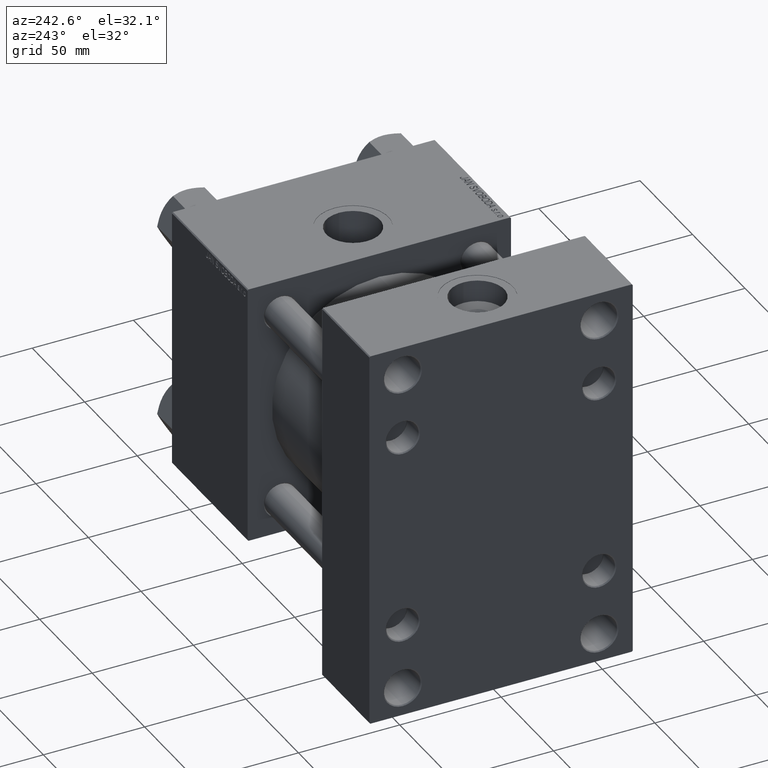
[diagram: clean part render]
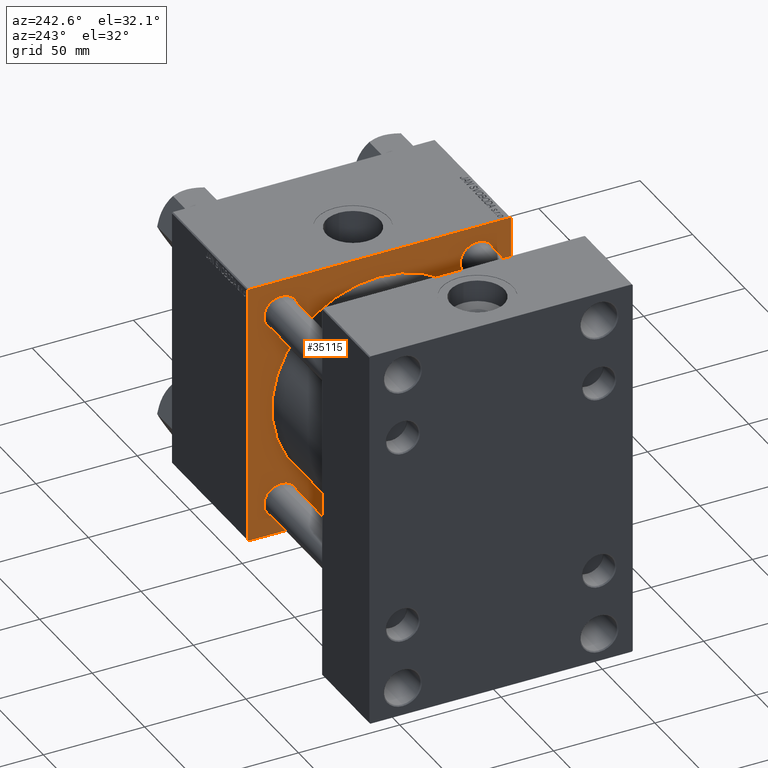
[diagram: same view with one face highlighted and labeled with its STEP entity id]
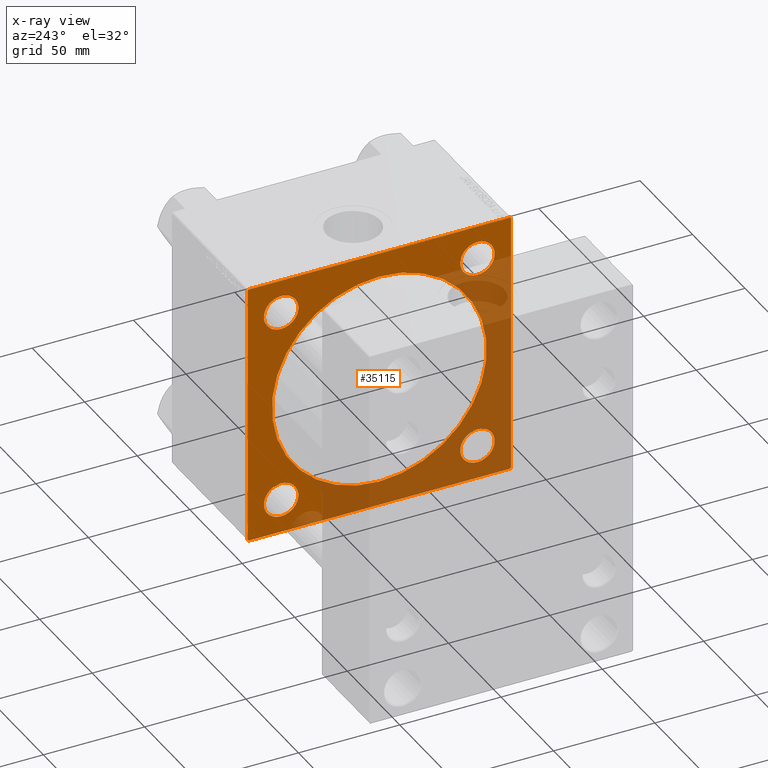
[diagram: x-ray of the same camera — body ghosted, the highlighted face saturated]
A machine part, auxiliary view. The second image highlights one B-rep face of the part: STEP entity #35115.
The next image is the same camera in x-ray: the body ghosted, the highlighted face saturated — about 43% of this face is hidden behind the body in this view.
In plain terms, the highlighted planar face has unit normal (-1, 0, 0).
Its self-contained STEP definition (entity closure, byte-faithful):
#81 = VERTEX_POINT ( 'NONE', #27203 ) ;
#229 = CARTESIAN_POINT ( 'NONE',  ( 115.9999999999999858, -64.99999999999998579, -64.49999999999997158 ) ) ;
#721 = DIRECTION ( 'NONE',  ( 0.000000000000000000, 0.000000000000000000, 1.000000000000000000 ) ) ;
#1762 = VECTOR ( 'NONE', #23969, 1000.000000000000000 ) ;
#1875 = FACE_BOUND ( 'NONE', #38560, .T. ) ;
#1954 = AXIS2_PLACEMENT_3D ( 'NONE', #36151, #47640, #43314 ) ;
#2648 = EDGE_CURVE ( 'NONE', #25100, #5800, #24473, .T. ) ;
#2710 = CARTESIAN_POINT ( 'NONE',  ( 115.9999999999999858, 65.00000000000002842, 64.50000000000004263 ) ) ;
#2801 = VERTEX_POINT ( 'NONE', #15984 ) ;
#3067 = LINE ( 'NONE', #41595, #46905 ) ;
#3414 = ORIENTED_EDGE ( 'NONE', *, *, #33796, .T. ) ;
#3471 = VERTEX_POINT ( 'NONE', #11128 ) ;
#4041 = EDGE_LOOP ( 'NONE', ( #50212, #26798 ) ) ;
#4786 = CARTESIAN_POINT ( 'NONE',  ( 115.9999999999999858, 48.45000000000000995, -56.95000000000007390 ) ) ;
#4822 = ORIENTED_EDGE ( 'NONE', *, *, #39467, .T. ) ;
#5620 = ORIENTED_EDGE ( 'NONE', *, *, #25835, .T. ) ;
#5629 = EDGE_LOOP ( 'NONE', ( #4822, #21544 ) ) ;
#5800 = VERTEX_POINT ( 'NONE', #229 ) ;
#7170 = ORIENTED_EDGE ( 'NONE', *, *, #40375, .T. ) ;
#7910 = AXIS2_PLACEMENT_3D ( 'NONE', #22193, #37774, #30105 ) ;
#7950 = DIRECTION ( 'NONE',  ( 1.000000000000000000, -0.000000000000000000, 0.000000000000000000 ) ) ;
#8104 = ORIENTED_EDGE ( 'NONE', *, *, #30467, .T. ) ;
#8114 = CARTESIAN_POINT ( 'NONE',  ( 115.9999999999999858, 64.49999999999997158, -64.99999999999998579 ) ) ;
#8438 = CARTESIAN_POINT ( 'NONE',  ( 115.9999999999999858, -48.44999999999999574, -56.95000000000008811 ) ) ;
#8525 = EDGE_LOOP ( 'NONE', ( #42593, #8104 ) ) ;
#8569 = AXIS2_PLACEMENT_3D ( 'NONE', #23482, #7950, #31144 ) ;
#9834 = CARTESIAN_POINT ( 'NONE',  ( 115.9999999999999858, 65.00000000000002842, -64.99999999999998579 ) ) ;
#10544 = CIRCLE ( 'NONE', #30921, 53.00000000000000711 ) ;
#10950 = LINE ( 'NONE', #29817, #41715 ) ;
#11128 = CARTESIAN_POINT ( 'NONE',  ( 115.9999999999999858, 48.45000000000000995, 39.94999999999995310 ) ) ;
#11851 = CARTESIAN_POINT ( 'NONE',  ( 115.9999999999999858, -48.44999999999999574, -39.94999999999996732 ) ) ;
#12093 = CARTESIAN_POINT ( 'NONE',  ( 115.9999999999999858, 48.45000000000000995, 48.45000000000001705 ) ) ;
#12511 = CARTESIAN_POINT ( 'NONE',  ( 115.9999999999999858, -64.99999999999998579, 65.00000000000000000 ) ) ;
#13302 = CARTESIAN_POINT ( 'NONE',  ( 115.9999999999999858, -64.74999999999816680, -64.75000000000176215 ) ) ;
#13410 = DIRECTION ( 'NONE',  ( 0.000000000000000000, 0.000000000000000000, -1.000000000000000000 ) ) ;
#13556 = LINE ( 'NONE', #13302, #49127 ) ;
#14025 = CARTESIAN_POINT ( 'NONE',  ( 115.9999999999999858, 65.00000000000002842, 65.00000000000001421 ) ) ;
#15187 = CARTESIAN_POINT ( 'NONE',  ( 115.9999999999999858, 3.888542821515762466E-15, -53.00000000000000711 ) ) ;
#15674 = DIRECTION ( 'NONE',  ( 0.000000000000000000, 0.000000000000000000, 1.000000000000000000 ) ) ;
#15726 = ORIENTED_EDGE ( 'NONE', *, *, #32432, .T. ) ;
#15877 = VECTOR ( 'NONE', #25383, 1000.000000000000000 ) ;
#15984 = CARTESIAN_POINT ( 'NONE',  ( 115.9999999999999858, 64.50000000000005684, 65.00000000000001421 ) ) ;
#16338 = ORIENTED_EDGE ( 'NONE', *, *, #2648, .F. ) ;
#16937 = FACE_BOUND ( 'NONE', #4041, .T. ) ;
#17009 = EDGE_CURVE ( 'NONE', #40512, #47598, #45324, .T. ) ;
#17092 = AXIS2_PLACEMENT_3D ( 'NONE', #22091, #26177, #33089 ) ;
#17120 = AXIS2_PLACEMENT_3D ( 'NONE', #44088, #19601, #721 ) ;
#17435 = FACE_OUTER_BOUND ( 'NONE', #38097, .T. ) ;
#17573 = DIRECTION ( 'NONE',  ( 1.000000000000000000, 0.000000000000000000, 0.000000000000000000 ) ) ;
#17887 = VERTEX_POINT ( 'NONE', #38648 ) ;
#18404 = EDGE_CURVE ( 'NONE', #2801, #31140, #22448, .T. ) ;
#19601 = DIRECTION ( 'NONE',  ( 1.000000000000000000, -0.000000000000000000, 0.000000000000000000 ) ) ;
#19797 = DIRECTION ( 'NONE',  ( -0.000000000000000000, -0.7071067811865474617, -0.7071067811865474617 ) ) ;
#20663 = VERTEX_POINT ( 'NONE', #8114 ) ;
#20721 = EDGE_CURVE ( 'NONE', #45558, #25261, #22741, .T. ) ;
#20753 = FACE_BOUND ( 'NONE', #45099, .T. ) ;
#20821 = VERTEX_POINT ( 'NONE', #2710 ) ;
#21136 = CARTESIAN_POINT ( 'NONE',  ( 115.9999999999999858, -48.44999999999999574, 39.94999999999996732 ) ) ;
#21242 = FACE_BOUND ( 'NONE', #5629, .T. ) ;
#21429 = DIRECTION ( 'NONE',  ( 0.000000000000000000, -0.7071067811865672237, 0.7071067811865279218 ) ) ;
#21544 = ORIENTED_EDGE ( 'NONE', *, *, #48207, .T. ) ;
#21659 = ORIENTED_EDGE ( 'NONE', *, *, #29829, .T. ) ;
#21708 = EDGE_CURVE ( 'NONE', #47598, #40512, #30953, .T. ) ;
#21881 = CARTESIAN_POINT ( 'NONE',  ( 115.9999999999999858, -64.99999999999998579, 64.49999999999997158 ) ) ;
#22037 = DIRECTION ( 'NONE',  ( 1.000000000000000000, -0.000000000000000000, 0.000000000000000000 ) ) ;
#22091 = CARTESIAN_POINT ( 'NONE',  ( 115.9999999999999858, -48.44999999999999574, -48.45000000000003126 ) ) ;
#22193 = CARTESIAN_POINT ( 'NONE',  ( 115.9999999999999858, -48.44999999999999574, 48.45000000000003126 ) ) ;
#22448 = LINE ( 'NONE', #30866, #42088 ) ;
#22741 = CIRCLE ( 'NONE', #1954, 8.500000000000063949 ) ;
#23124 = LINE ( 'NONE', #23373, #46731 ) ;
#23373 = CARTESIAN_POINT ( 'NONE',  ( 115.9999999999999858, 64.74999999999997158, -64.74999999999997158 ) ) ;
#23482 = CARTESIAN_POINT ( 'NONE',  ( 115.9999999999999858, -48.44999999999999574, 48.45000000000003126 ) ) ;
#23564 = DIRECTION ( 'NONE',  ( 1.000000000000000000, -0.000000000000000000, 0.000000000000000000 ) ) ;
#23909 = AXIS2_PLACEMENT_3D ( 'NONE', #12093, #27378, #46528 ) ;
#23969 = DIRECTION ( 'NONE',  ( 0.000000000000000000, 0.000000000000000000, -1.000000000000000000 ) ) ;
#24473 = LINE ( 'NONE', #12511, #1762 ) ;
#24836 = DIRECTION ( 'NONE',  ( -1.000000000000000000, 0.000000000000000000, -0.000000000000000000 ) ) ;
#25100 = VERTEX_POINT ( 'NONE', #21881 ) ;
#25261 = VERTEX_POINT ( 'NONE', #35607 ) ;
#25383 = DIRECTION ( 'NONE',  ( 0.000000000000000000, -1.000000000000000000, -2.135044278125300850E-16 ) ) ;
#25590 = DIRECTION ( 'NONE',  ( -0.000000000000000000, 0.000000000000000000, 1.000000000000000000 ) ) ;
#25835 = EDGE_CURVE ( 'NONE', #25261, #45558, #28504, .T. ) ;
#26177 = DIRECTION ( 'NONE',  ( 1.000000000000000000, -0.000000000000000000, 0.000000000000000000 ) ) ;
#26489 = DIRECTION ( 'NONE',  ( -0.000000000000000000, 0.7071067811865376918, 0.7071067811865574537 ) ) ;
#26548 = AXIS2_PLACEMENT_3D ( 'NONE', #38137, #23564, #15674 ) ;
#26798 = ORIENTED_EDGE ( 'NONE', *, *, #21708, .T. ) ;
#27203 = CARTESIAN_POINT ( 'NONE',  ( 115.9999999999999858, 65.00000000000002842, -64.49999999999992895 ) ) ;
#27378 = DIRECTION ( 'NONE',  ( 1.000000000000000000, -0.000000000000000000, 0.000000000000000000 ) ) ;
#27635 = VECTOR ( 'NONE', #30310, 1000.000000000000000 ) ;
#28504 = CIRCLE ( 'NONE', #17120, 8.500000000000063949 ) ;
#28628 = ORIENTED_EDGE ( 'NONE', *, *, #48829, .T. ) ;
#28788 = DIRECTION ( 'NONE',  ( 0.000000000000000000, 0.000000000000000000, -1.000000000000000000 ) ) ;
#29166 = CARTESIAN_POINT ( 'NONE',  ( 115.9999999999999858, 0.000000000000000000, 0.000000000000000000 ) ) ;
#29381 = ORIENTED_EDGE ( 'NONE', *, *, #41965, .T. ) ;
#29817 = CARTESIAN_POINT ( 'NONE',  ( 115.9999999999999858, -64.75000000000088107, 64.74999999999907629 ) ) ;
#29829 = EDGE_CURVE ( 'NONE', #25100, #31140, #10950, .T. ) ;
#29832 = ORIENTED_EDGE ( 'NONE', *, *, #38086, .T. ) ;
#30105 = DIRECTION ( 'NONE',  ( 0.000000000000000000, 0.000000000000000000, 1.000000000000000000 ) ) ;
#30195 = CARTESIAN_POINT ( 'NONE',  ( 115.9999999999999858, 48.45000000000000995, 48.45000000000001705 ) ) ;
#30310 = DIRECTION ( 'NONE',  ( 0.000000000000000000, 0.000000000000000000, -1.000000000000000000 ) ) ;
#30467 = EDGE_CURVE ( 'NONE', #3471, #32907, #46660, .T. ) ;
#30511 = AXIS2_PLACEMENT_3D ( 'NONE', #33292, #38060, #13410 ) ;
#30866 = CARTESIAN_POINT ( 'NONE',  ( 115.9999999999999858, 65.00000000000002842, 65.00000000000001421 ) ) ;
#30921 = AXIS2_PLACEMENT_3D ( 'NONE', #40554, #17573, #28788 ) ;
#30953 = CIRCLE ( 'NONE', #17092, 8.500000000000063949 ) ;
#31140 = VERTEX_POINT ( 'NONE', #46537 ) ;
#31144 = DIRECTION ( 'NONE',  ( 0.000000000000000000, 0.000000000000000000, 1.000000000000000000 ) ) ;
#31954 = VERTEX_POINT ( 'NONE', #15187 ) ;
#32432 = EDGE_CURVE ( 'NONE', #47534, #5800, #13556, .T. ) ;
#32495 = PLANE ( 'NONE',  #49230 ) ;
#32500 = CARTESIAN_POINT ( 'NONE',  ( 115.9999999999999858, 48.45000000000000995, 56.95000000000007390 ) ) ;
#32907 = VERTEX_POINT ( 'NONE', #32500 ) ;
#33089 = DIRECTION ( 'NONE',  ( 0.000000000000000000, 0.000000000000000000, 1.000000000000000000 ) ) ;
#33292 = CARTESIAN_POINT ( 'NONE',  ( 115.9999999999999858, -2.602085213965210642E-15, 0.000000000000000000 ) ) ;
#33796 = EDGE_CURVE ( 'NONE', #81, #20663, #23124, .T. ) ;
#35115 = ADVANCED_FACE ( 'NONE', ( #20753, #36331, #1875, #16937, #21242, #17435 ), #32495, .T. ) ;
#35607 = CARTESIAN_POINT ( 'NONE',  ( 115.9999999999999858, 48.45000000000000995, -39.94999999999995310 ) ) ;
#36151 = CARTESIAN_POINT ( 'NONE',  ( 115.9999999999999858, 48.45000000000000995, -48.45000000000001705 ) ) ;
#36331 = FACE_BOUND ( 'NONE', #8525, .T. ) ;
#37455 = ORIENTED_EDGE ( 'NONE', *, *, #20721, .T. ) ;
#37512 = DIRECTION ( 'NONE',  ( 0.000000000000000000, 0.7071067811865474617, -0.7071067811865474617 ) ) ;
#37774 = DIRECTION ( 'NONE',  ( 1.000000000000000000, -0.000000000000000000, 0.000000000000000000 ) ) ;
#37816 = EDGE_CURVE ( 'NONE', #32907, #3471, #45123, .T. ) ;
#38060 = DIRECTION ( 'NONE',  ( 1.000000000000000000, 0.000000000000000000, 0.000000000000000000 ) ) ;
#38086 = EDGE_CURVE ( 'NONE', #46263, #48245, #48471, .T. ) ;
#38097 = EDGE_LOOP ( 'NONE', ( #7170, #15726, #16338, #21659, #43703, #29381, #28628, #3414 ) ) ;
#38137 = CARTESIAN_POINT ( 'NONE',  ( 115.9999999999999858, -48.44999999999999574, -48.45000000000003126 ) ) ;
#38560 = EDGE_LOOP ( 'NONE', ( #5620, #37455 ) ) ;
#38648 = CARTESIAN_POINT ( 'NONE',  ( 115.9999999999999858, -2.602085213965210642E-15, 53.00000000000000711 ) ) ;
#39467 = EDGE_CURVE ( 'NONE', #17887, #31954, #46800, .T. ) ;
#40375 = EDGE_CURVE ( 'NONE', #20663, #47534, #44787, .T. ) ;
#40504 = CIRCLE ( 'NONE', #7910, 8.500000000000063949 ) ;
#40512 = VERTEX_POINT ( 'NONE', #11851 ) ;
#40554 = CARTESIAN_POINT ( 'NONE',  ( 115.9999999999999858, -2.602085213965210642E-15, 0.000000000000000000 ) ) ;
#41595 = CARTESIAN_POINT ( 'NONE',  ( 115.9999999999999858, 64.75000000000004263, 64.75000000000004263 ) ) ;
#41715 = VECTOR ( 'NONE', #26489, 999.9999999999998863 ) ;
#41965 = EDGE_CURVE ( 'NONE', #2801, #20821, #3067, .T. ) ;
#42088 = VECTOR ( 'NONE', #46439, 1000.000000000000000 ) ;
#42593 = ORIENTED_EDGE ( 'NONE', *, *, #37816, .T. ) ;
#43314 = DIRECTION ( 'NONE',  ( 0.000000000000000000, 0.000000000000000000, 1.000000000000000000 ) ) ;
#43391 = AXIS2_PLACEMENT_3D ( 'NONE', #30195, #22037, #46028 ) ;
#43703 = ORIENTED_EDGE ( 'NONE', *, *, #18404, .F. ) ;
#44088 = CARTESIAN_POINT ( 'NONE',  ( 115.9999999999999858, 48.45000000000000995, -48.45000000000001705 ) ) ;
#44787 = LINE ( 'NONE', #9834, #15877 ) ;
#45099 = EDGE_LOOP ( 'NONE', ( #47967, #29832 ) ) ;
#45123 = CIRCLE ( 'NONE', #23909, 8.500000000000063949 ) ;
#45124 = EDGE_CURVE ( 'NONE', #48245, #46263, #40504, .T. ) ;
#45324 = CIRCLE ( 'NONE', #26548, 8.500000000000063949 ) ;
#45558 = VERTEX_POINT ( 'NONE', #4786 ) ;
#46028 = DIRECTION ( 'NONE',  ( 0.000000000000000000, 0.000000000000000000, 1.000000000000000000 ) ) ;
#46263 = VERTEX_POINT ( 'NONE', #21136 ) ;
#46439 = DIRECTION ( 'NONE',  ( 0.000000000000000000, -1.000000000000000000, -1.067522139062650425E-16 ) ) ;
#46528 = DIRECTION ( 'NONE',  ( 0.000000000000000000, 0.000000000000000000, 1.000000000000000000 ) ) ;
#46537 = CARTESIAN_POINT ( 'NONE',  ( 115.9999999999999858, -64.49999999999997158, 65.00000000000000000 ) ) ;
#46660 = CIRCLE ( 'NONE', #43391, 8.500000000000063949 ) ;
#46731 = VECTOR ( 'NONE', #19797, 1000.000000000000114 ) ;
#46800 = CIRCLE ( 'NONE', #30511, 53.00000000000000711 ) ;
#46905 = VECTOR ( 'NONE', #37512, 1000.000000000000114 ) ;
#47534 = VERTEX_POINT ( 'NONE', #50273 ) ;
#47598 = VERTEX_POINT ( 'NONE', #8438 ) ;
#47640 = DIRECTION ( 'NONE',  ( 1.000000000000000000, -0.000000000000000000, 0.000000000000000000 ) ) ;
#47967 = ORIENTED_EDGE ( 'NONE', *, *, #45124, .T. ) ;
#48207 = EDGE_CURVE ( 'NONE', #31954, #17887, #10544, .T. ) ;
#48245 = VERTEX_POINT ( 'NONE', #49450 ) ;
#48471 = CIRCLE ( 'NONE', #8569, 8.500000000000063949 ) ;
#48829 = EDGE_CURVE ( 'NONE', #20821, #81, #48957, .T. ) ;
#48957 = LINE ( 'NONE', #14025, #27635 ) ;
#49127 = VECTOR ( 'NONE', #21429, 1000.000000000000000 ) ;
#49230 = AXIS2_PLACEMENT_3D ( 'NONE', #29166, #24836, #25590 ) ;
#49450 = CARTESIAN_POINT ( 'NONE',  ( 115.9999999999999858, -48.44999999999999574, 56.95000000000008811 ) ) ;
#50212 = ORIENTED_EDGE ( 'NONE', *, *, #17009, .T. ) ;
#50273 = CARTESIAN_POINT ( 'NONE',  ( 115.9999999999999858, -64.49999999999991473, -65.00000000000001421 ) ) ;